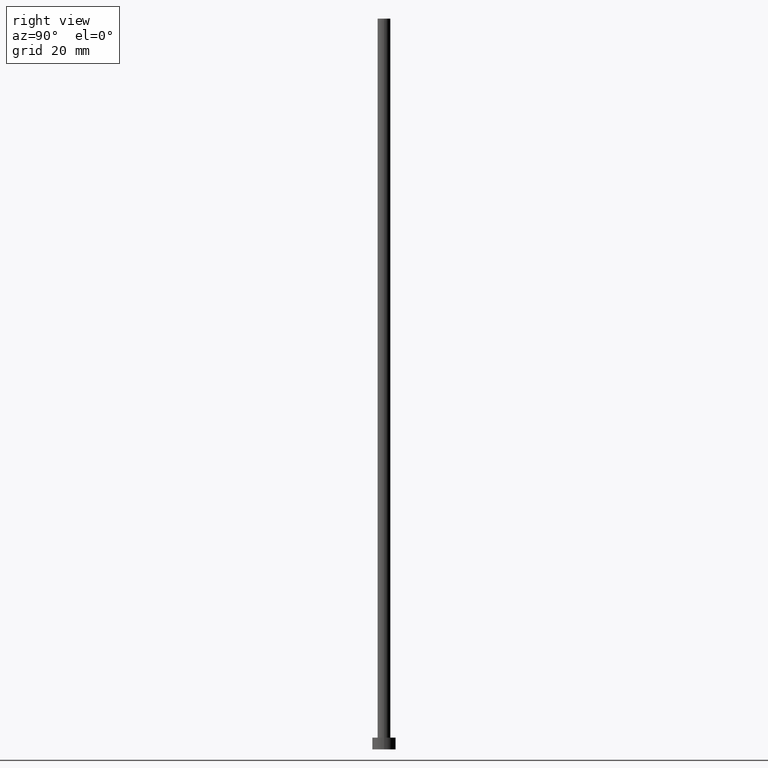
[diagram: clean part render]
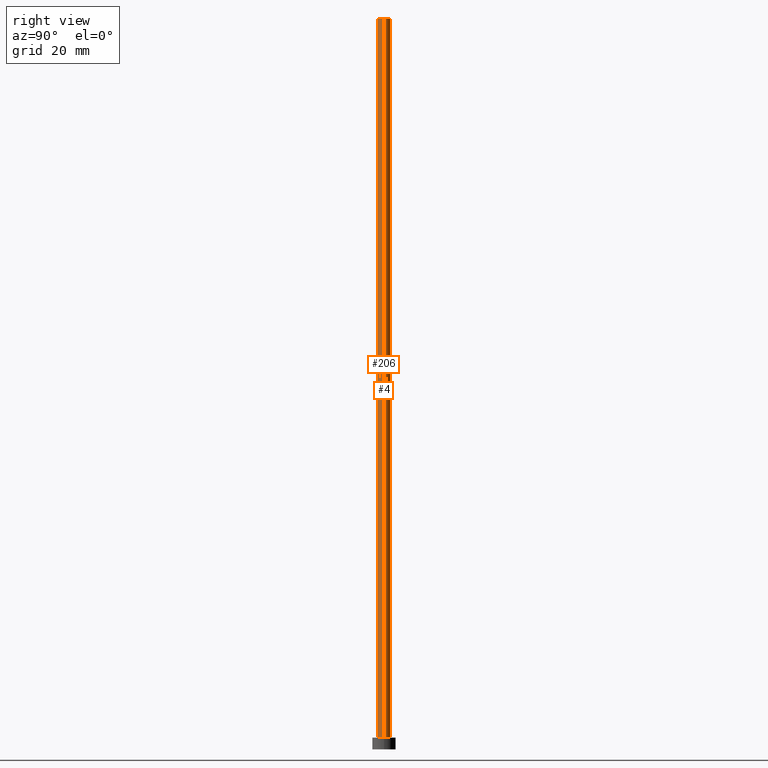
[diagram: same view with one multi-face feature highlighted, each face labeled with its STEP entity id]
A machine part, right view. The highlighted faces form ONE feature: a constant-radius fillet chain: 2 tangent blend faces with common blend radius 1.1 mm. The faces share edges in the B-rep.
Their STEP definitions:
[1] entity #4 (Cylinder):
#1 = DIRECTION ( 'NONE',  ( -0.000000000000000000, -0.000000000000000000, -1.000000000000000000 ) ) ;
#4 = ADVANCED_FACE ( 'NONE', ( #82 ), #80, .T. ) ;
#8 = AXIS2_PLACEMENT_3D ( 'NONE', #40, #63, #232 ) ;
#20 = CARTESIAN_POINT ( 'NONE',  ( -1.100000000000000089, 0.000000000000000000, 125.0000000000000000 ) ) ;
#40 = CARTESIAN_POINT ( 'NONE',  ( 0.000000000000000000, 0.000000000000000000, 125.0000000000000000 ) ) ;
#42 = DIRECTION ( 'NONE',  ( 0.000000000000000000, 0.000000000000000000, 1.000000000000000000 ) ) ;
#45 = DIRECTION ( 'NONE',  ( 1.000000000000000000, 0.000000000000000000, 0.000000000000000000 ) ) ;
#54 = VERTEX_POINT ( 'NONE', #193 ) ;
#55 = VECTOR ( 'NONE', #1, 1000.000000000000000 ) ;
#59 = LINE ( 'NONE', #20, #55 ) ;
#62 = CARTESIAN_POINT ( 'NONE',  ( 1.100000000000000089, 1.347111479062088503E-16, 125.0000000000000000 ) ) ;
#63 = DIRECTION ( 'NONE',  ( -0.000000000000000000, -0.000000000000000000, -1.000000000000000000 ) ) ;
#70 = ORIENTED_EDGE ( 'NONE', *, *, #79, .T. ) ;
#71 = EDGE_CURVE ( 'NONE', #209, #54, #59, .T. ) ;
#75 = EDGE_CURVE ( 'NONE', #190, #209, #194, .T. ) ;
#79 = EDGE_CURVE ( 'NONE', #109, #54, #86, .T. ) ;
#80 = CYLINDRICAL_SURFACE ( 'NONE', #8, 1.100000000000000089 ) ;
#82 = FACE_OUTER_BOUND ( 'NONE', #211, .T. ) ;
#86 = CIRCLE ( 'NONE', #226, 1.100000000000000089 ) ;
#94 = CARTESIAN_POINT ( 'NONE',  ( 0.000000000000000000, 0.000000000000000000, 125.0000000000000000 ) ) ;
#103 = AXIS2_PLACEMENT_3D ( 'NONE', #94, #42, #142 ) ;
#109 = VERTEX_POINT ( 'NONE', #122 ) ;
#113 = ORIENTED_EDGE ( 'NONE', *, *, #71, .F. ) ;
#117 = EDGE_CURVE ( 'NONE', #190, #109, #174, .T. ) ;
#119 = VECTOR ( 'NONE', #216, 1000.000000000000000 ) ;
#122 = CARTESIAN_POINT ( 'NONE',  ( 1.100000000000000089, 1.347111479062088503E-16, 2.000000000000000000 ) ) ;
#127 = CARTESIAN_POINT ( 'NONE',  ( -1.100000000000000089, 0.000000000000000000, 125.0000000000000000 ) ) ;
#133 = ORIENTED_EDGE ( 'NONE', *, *, #117, .T. ) ;
#138 = DIRECTION ( 'NONE',  ( 0.000000000000000000, 0.000000000000000000, 1.000000000000000000 ) ) ;
#142 = DIRECTION ( 'NONE',  ( 1.000000000000000000, 0.000000000000000000, 0.000000000000000000 ) ) ;
#174 = LINE ( 'NONE', #198, #119 ) ;
#186 = ORIENTED_EDGE ( 'NONE', *, *, #75, .F. ) ;
#190 = VERTEX_POINT ( 'NONE', #62 ) ;
#193 = CARTESIAN_POINT ( 'NONE',  ( -1.100000000000000089, 0.000000000000000000, 2.000000000000000000 ) ) ;
#194 = CIRCLE ( 'NONE', #103, 1.100000000000000089 ) ;
#198 = CARTESIAN_POINT ( 'NONE',  ( 1.100000000000000089, 1.347111479062088503E-16, 125.0000000000000000 ) ) ;
#209 = VERTEX_POINT ( 'NONE', #127 ) ;
#211 = EDGE_LOOP ( 'NONE', ( #186, #133, #70, #113 ) ) ;
#216 = DIRECTION ( 'NONE',  ( -0.000000000000000000, -0.000000000000000000, -1.000000000000000000 ) ) ;
#218 = CARTESIAN_POINT ( 'NONE',  ( 0.000000000000000000, 0.000000000000000000, 2.000000000000000000 ) ) ;
#226 = AXIS2_PLACEMENT_3D ( 'NONE', #218, #138, #45 ) ;
#232 = DIRECTION ( 'NONE',  ( -1.000000000000000000, 0.000000000000000000, 0.000000000000000000 ) ) ;
[2] entity #206 (Cylinder):
#1 = DIRECTION ( 'NONE',  ( -0.000000000000000000, -0.000000000000000000, -1.000000000000000000 ) ) ;
#7 = EDGE_CURVE ( 'NONE', #54, #109, #189, .T. ) ;
#14 = ORIENTED_EDGE ( 'NONE', *, *, #18, .F. ) ;
#18 = EDGE_CURVE ( 'NONE', #209, #190, #95, .T. ) ;
#20 = CARTESIAN_POINT ( 'NONE',  ( -1.100000000000000089, 0.000000000000000000, 125.0000000000000000 ) ) ;
#22 = DIRECTION ( 'NONE',  ( 1.000000000000000000, 0.000000000000000000, 0.000000000000000000 ) ) ;
#37 = ORIENTED_EDGE ( 'NONE', *, *, #117, .F. ) ;
#41 = CARTESIAN_POINT ( 'NONE',  ( 0.000000000000000000, 0.000000000000000000, 2.000000000000000000 ) ) ;
#48 = AXIS2_PLACEMENT_3D ( 'NONE', #246, #50, #164 ) ;
#50 = DIRECTION ( 'NONE',  ( -0.000000000000000000, -0.000000000000000000, -1.000000000000000000 ) ) ;
#54 = VERTEX_POINT ( 'NONE', #193 ) ;
#55 = VECTOR ( 'NONE', #1, 1000.000000000000000 ) ;
#59 = LINE ( 'NONE', #20, #55 ) ;
#61 = DIRECTION ( 'NONE',  ( 0.000000000000000000, 0.000000000000000000, 1.000000000000000000 ) ) ;
#62 = CARTESIAN_POINT ( 'NONE',  ( 1.100000000000000089, 1.347111479062088503E-16, 125.0000000000000000 ) ) ;
#71 = EDGE_CURVE ( 'NONE', #209, #54, #59, .T. ) ;
#95 = CIRCLE ( 'NONE', #148, 1.100000000000000089 ) ;
#98 = DIRECTION ( 'NONE',  ( 0.000000000000000000, 0.000000000000000000, 1.000000000000000000 ) ) ;
#109 = VERTEX_POINT ( 'NONE', #122 ) ;
#117 = EDGE_CURVE ( 'NONE', #190, #109, #174, .T. ) ;
#119 = VECTOR ( 'NONE', #216, 1000.000000000000000 ) ;
#122 = CARTESIAN_POINT ( 'NONE',  ( 1.100000000000000089, 1.347111479062088503E-16, 2.000000000000000000 ) ) ;
#127 = CARTESIAN_POINT ( 'NONE',  ( -1.100000000000000089, 0.000000000000000000, 125.0000000000000000 ) ) ;
#132 = EDGE_LOOP ( 'NONE', ( #37, #14, #169, #229 ) ) ;
#148 = AXIS2_PLACEMENT_3D ( 'NONE', #255, #98, #160 ) ;
#160 = DIRECTION ( 'NONE',  ( 1.000000000000000000, 0.000000000000000000, 0.000000000000000000 ) ) ;
#164 = DIRECTION ( 'NONE',  ( -1.000000000000000000, 0.000000000000000000, 0.000000000000000000 ) ) ;
#169 = ORIENTED_EDGE ( 'NONE', *, *, #71, .T. ) ;
#174 = LINE ( 'NONE', #198, #119 ) ;
#189 = CIRCLE ( 'NONE', #207, 1.100000000000000089 ) ;
#190 = VERTEX_POINT ( 'NONE', #62 ) ;
#193 = CARTESIAN_POINT ( 'NONE',  ( -1.100000000000000089, 0.000000000000000000, 2.000000000000000000 ) ) ;
#198 = CARTESIAN_POINT ( 'NONE',  ( 1.100000000000000089, 1.347111479062088503E-16, 125.0000000000000000 ) ) ;
#206 = ADVANCED_FACE ( 'NONE', ( #240 ), #245, .T. ) ;
#207 = AXIS2_PLACEMENT_3D ( 'NONE', #41, #61, #22 ) ;
#209 = VERTEX_POINT ( 'NONE', #127 ) ;
#216 = DIRECTION ( 'NONE',  ( -0.000000000000000000, -0.000000000000000000, -1.000000000000000000 ) ) ;
#229 = ORIENTED_EDGE ( 'NONE', *, *, #7, .T. ) ;
#240 = FACE_OUTER_BOUND ( 'NONE', #132, .T. ) ;
#245 = CYLINDRICAL_SURFACE ( 'NONE', #48, 1.100000000000000089 ) ;
#246 = CARTESIAN_POINT ( 'NONE',  ( 0.000000000000000000, 0.000000000000000000, 125.0000000000000000 ) ) ;
#255 = CARTESIAN_POINT ( 'NONE',  ( 0.000000000000000000, 0.000000000000000000, 125.0000000000000000 ) ) ;